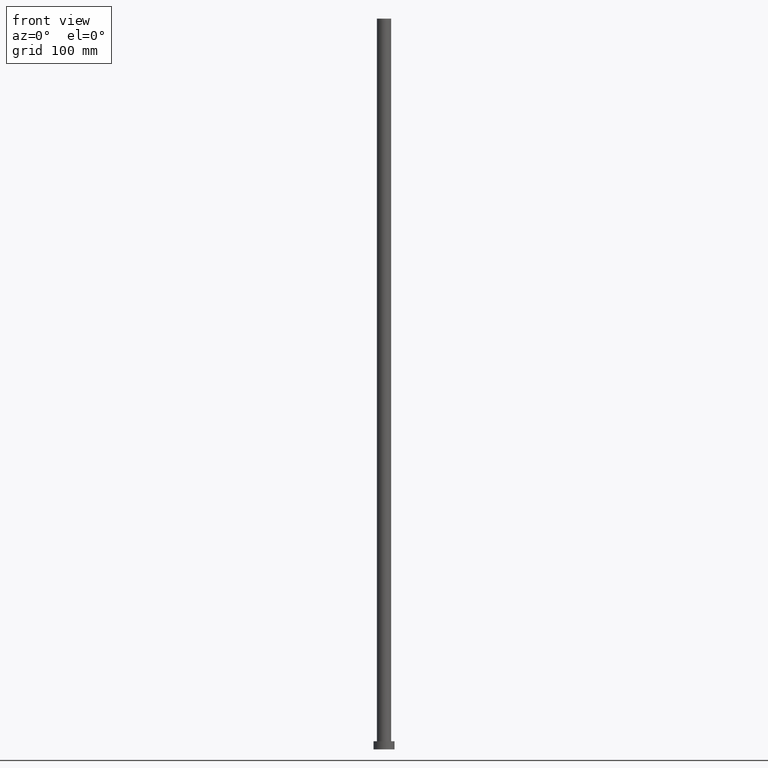
[diagram: clean part render]
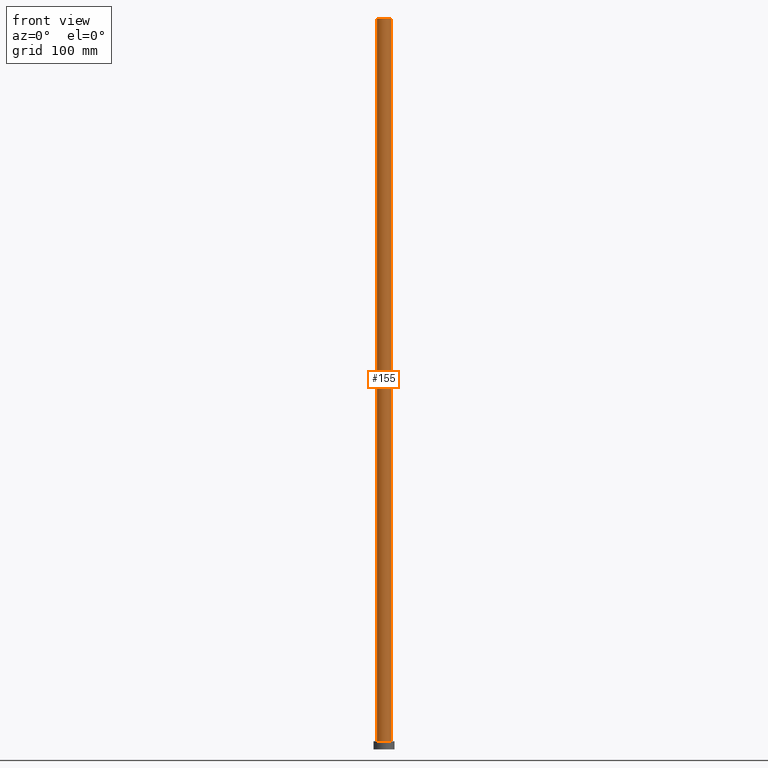
[diagram: same view with one face highlighted and labeled with its STEP entity id]
A machine part, front view. The second image highlights one B-rep face of the part: STEP entity #155.
In plain terms, the highlighted cylindrical surface (edge-blend (fillet) strip) has radius 6.1 mm, axis along (-0, -0, -1).
Its self-contained STEP definition (entity closure, byte-faithful):
#3 = FACE_OUTER_BOUND ( 'NONE', #169, .T. ) ;
#24 = EDGE_CURVE ( 'NONE', #61, #111, #52, .T. ) ;
#34 = DIRECTION ( 'NONE',  ( 0.000000000000000000, 0.000000000000000000, 1.000000000000000000 ) ) ;
#50 = CARTESIAN_POINT ( 'NONE',  ( 0.000000000000000000, 0.000000000000000000, 630.0000000000000000 ) ) ;
#51 = DIRECTION ( 'NONE',  ( -0.000000000000000000, -0.000000000000000000, -1.000000000000000000 ) ) ;
#52 = CIRCLE ( 'NONE', #80, 6.099999999999999645 ) ;
#57 = CYLINDRICAL_SURFACE ( 'NONE', #141, 6.099999999999999645 ) ;
#61 = VERTEX_POINT ( 'NONE', #248 ) ;
#63 = ORIENTED_EDGE ( 'NONE', *, *, #24, .T. ) ;
#69 = CARTESIAN_POINT ( 'NONE',  ( -6.099999999999999645, 0.000000000000000000, 630.0000000000000000 ) ) ;
#70 = EDGE_CURVE ( 'NONE', #104, #61, #153, .T. ) ;
#74 = LINE ( 'NONE', #226, #210 ) ;
#75 = CARTESIAN_POINT ( 'NONE',  ( 6.099999999999999645, 7.470345474798854293E-16, 630.0000000000000000 ) ) ;
#80 = AXIS2_PLACEMENT_3D ( 'NONE', #171, #90, #174 ) ;
#87 = ORIENTED_EDGE ( 'NONE', *, *, #158, .F. ) ;
#90 = DIRECTION ( 'NONE',  ( 0.000000000000000000, 0.000000000000000000, 1.000000000000000000 ) ) ;
#91 = CARTESIAN_POINT ( 'NONE',  ( -6.099999999999999645, 0.000000000000000000, 630.0000000000000000 ) ) ;
#104 = VERTEX_POINT ( 'NONE', #91 ) ;
#111 = VERTEX_POINT ( 'NONE', #133 ) ;
#117 = EDGE_CURVE ( 'NONE', #104, #211, #196, .T. ) ;
#128 = AXIS2_PLACEMENT_3D ( 'NONE', #50, #34, #219 ) ;
#133 = CARTESIAN_POINT ( 'NONE',  ( 6.099999999999999645, 7.470345474798854293E-16, 7.000000000000000000 ) ) ;
#140 = CARTESIAN_POINT ( 'NONE',  ( 0.000000000000000000, 0.000000000000000000, 630.0000000000000000 ) ) ;
#141 = AXIS2_PLACEMENT_3D ( 'NONE', #140, #224, #162 ) ;
#153 = LINE ( 'NONE', #69, #232 ) ;
#155 = ADVANCED_FACE ( 'NONE', ( #3 ), #57, .T. ) ;
#158 = EDGE_CURVE ( 'NONE', #211, #111, #74, .T. ) ;
#162 = DIRECTION ( 'NONE',  ( -1.000000000000000000, 0.000000000000000000, 0.000000000000000000 ) ) ;
#169 = EDGE_LOOP ( 'NONE', ( #87, #176, #242, #63 ) ) ;
#171 = CARTESIAN_POINT ( 'NONE',  ( 0.000000000000000000, 0.000000000000000000, 7.000000000000000000 ) ) ;
#174 = DIRECTION ( 'NONE',  ( 1.000000000000000000, 0.000000000000000000, 0.000000000000000000 ) ) ;
#176 = ORIENTED_EDGE ( 'NONE', *, *, #117, .F. ) ;
#196 = CIRCLE ( 'NONE', #128, 6.099999999999999645 ) ;
#210 = VECTOR ( 'NONE', #225, 1000.000000000000000 ) ;
#211 = VERTEX_POINT ( 'NONE', #75 ) ;
#219 = DIRECTION ( 'NONE',  ( 1.000000000000000000, 0.000000000000000000, 0.000000000000000000 ) ) ;
#224 = DIRECTION ( 'NONE',  ( -0.000000000000000000, -0.000000000000000000, -1.000000000000000000 ) ) ;
#225 = DIRECTION ( 'NONE',  ( -0.000000000000000000, -0.000000000000000000, -1.000000000000000000 ) ) ;
#226 = CARTESIAN_POINT ( 'NONE',  ( 6.099999999999999645, 7.470345474798854293E-16, 630.0000000000000000 ) ) ;
#232 = VECTOR ( 'NONE', #51, 1000.000000000000000 ) ;
#242 = ORIENTED_EDGE ( 'NONE', *, *, #70, .T. ) ;
#248 = CARTESIAN_POINT ( 'NONE',  ( -6.099999999999999645, 0.000000000000000000, 7.000000000000000000 ) ) ;